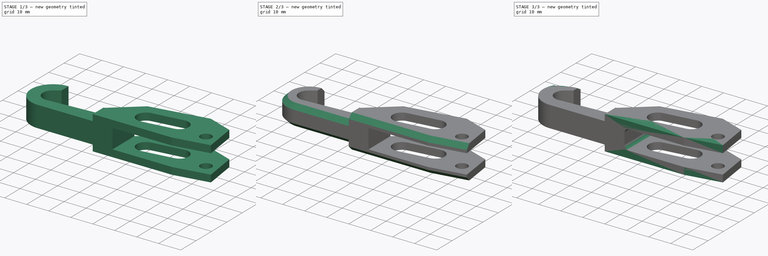
[diagram: build sequence overview — one tinted view per stage of 3, left to right]
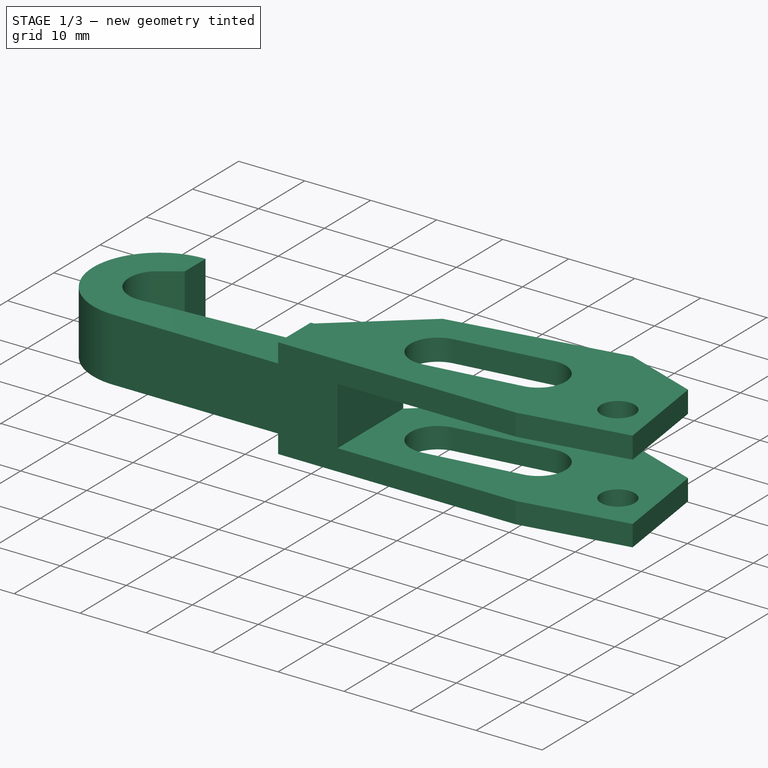
[diagram: stage 1 of 3 — iso view after this stage's code; geometry added in this stage tinted green]
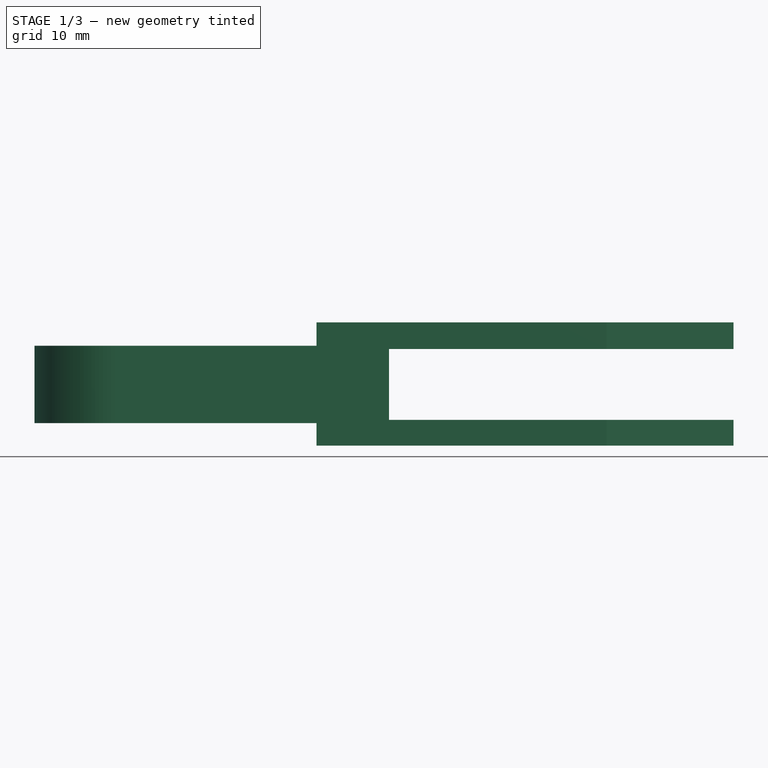
[diagram: stage 1 of 3 — front view after this stage's code; geometry added in this stage tinted green]
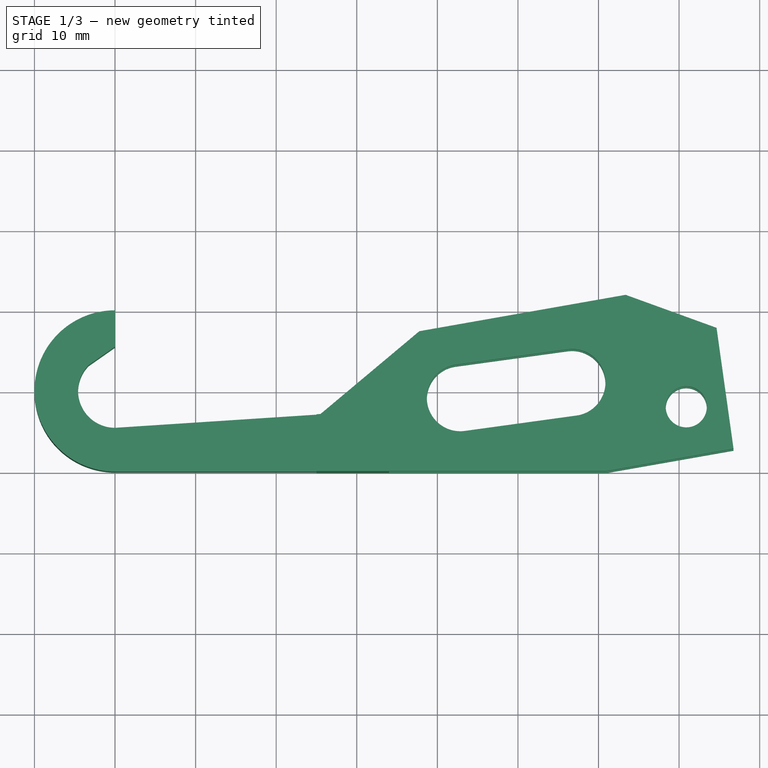
[diagram: stage 1 of 3 — top view after this stage's code; geometry added in this stage tinted green]
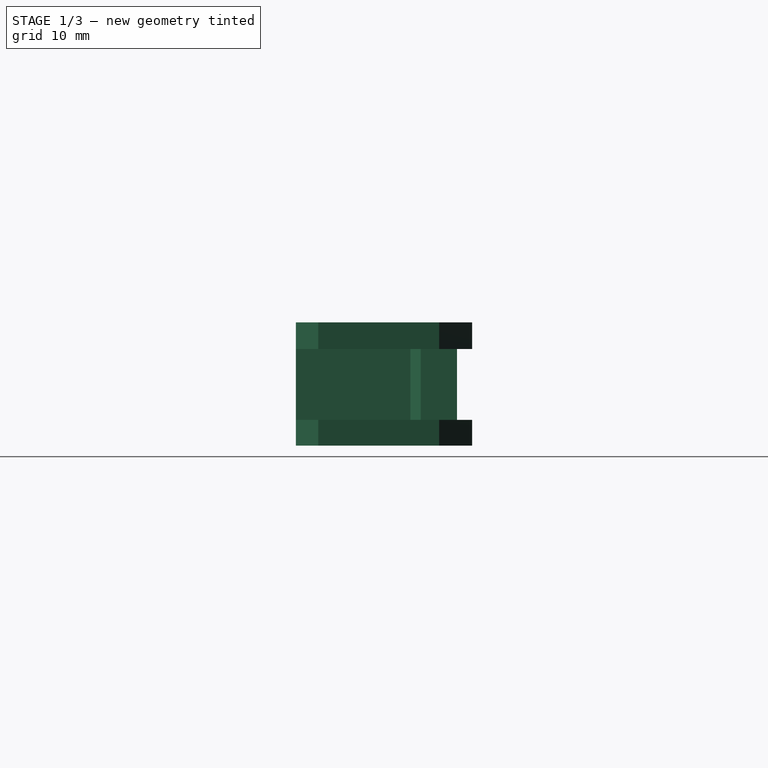
[diagram: stage 1 of 3 — right view after this stage's code; geometry added in this stage tinted green]
FCSTD DOCUMENT  (FreeCAD 0.21R33668 +26 (Git))
Label: Door Latch
License: All rights reserved
LicenseURL: http://en.wikipedia.org/wiki/All_rights_reserved
objects: Sketcher::SketchObject×3, PartDesign::Pocket×2, PartDesign::Chamfer×2, PartDesign::Pad×1, PartDesign::Fillet×1, PartDesign::Body×1, TechDraw::DrawSVGTemplate×1, TechDraw::DrawViewImage×1, TechDraw::DrawPage×1
note: 16 computed .brp shape members not serialized (recipe doc carries the construction recipe); baked Part::Feature solids carry a one-line shape summary decoded from their .brp

FEATURE [Sketcher::SketchObject] Sketch001
  FullyConstrained = true
  MapMode = 5
  Support = -> [XY_Plane]
  sketch-geometry (16):
    g0: ArcOfCircle CenterX=0 CenterY=0 CenterZ=0 NormalX=0 NormalY=0 NormalZ=1 AngleXU=0 Radius=10 StartAngle=1.5708 EndAngle=4.71239
    g1: LineSegment StartX=6e-16 StartY=10 StartZ=0 EndX=0 EndY=5.5 EndZ=0
    g2: LineSegment StartX=0 StartY=5.5 StartZ=0 EndX=-3.27661 EndY=3.20569 EndZ=0
    g3: ArcOfCircle CenterX=0 CenterY=0 CenterZ=0 NormalX=0 NormalY=0 NormalZ=1 AngleXU=0 Radius=4.58395 StartAngle=2.36713 EndAngle=4.71239
    g4: LineSegment StartX=-1.8e-15 StartY=-10 StartZ=0 EndX=61 EndY=-10 EndZ=0
    g5: LineSegment StartX=61 StartY=-10 StartZ=0 EndX=76.7569 EndY=-7.22163 EndZ=0
    g6: LineSegment StartX=76.7569 StartY=-7.22163 StartZ=0 EndX=74.6488 EndY=7.77837 EndZ=0
    g7: LineSegment StartX=74.6488 StartY=7.77837 StartZ=0 EndX=63.3687 EndY=11.8721 EndZ=0
    g8: LineSegment StartX=63.3687 StartY=11.8721 StartZ=0 EndX=37.7637 EndY=7.35726 EndZ=0
    g9: LineSegment StartX=37.7637 StartY=7.35726 StartZ=0 EndX=25.5 EndY=-2.91903 EndZ=0
    g10: LineSegment StartX=25.5 StartY=-2.91903 StartZ=0 EndX=0 EndY=-4.58395 EndZ=0
    g11: Circle CenterX=70.8924 CenterY=-2.02671 CenterZ=0 NormalX=0 NormalY=0 NormalZ=1 AngleXU=0 Radius=2.55
    g12: ArcOfCircle CenterX=42.8428 CenterY=-0.91 CenterZ=0 NormalX=0 NormalY=0 NormalZ=1 AngleXU=0 Radius=4.15 StartAngle=1.70765 EndAngle=4.84924
    g13: ArcOfCircle CenterX=56.7119 CenterY=1 CenterZ=0 NormalX=0 NormalY=0 NormalZ=1 AngleXU=0 Radius=4.15 StartAngle=4.84924 EndAngle=7.99084
    g14: LineSegment StartX=43.4089 StartY=-5.0212 StartZ=0 EndX=57.278 EndY=-3.1112 EndZ=0
    g15: LineSegment StartX=56.1457 StartY=5.1112 StartZ=0 EndX=42.2766 EndY=3.2012 EndZ=0
  constraints (46):
    c: Coincident(g0,g-1)
    c: PointOnObject(g0,g-2)
    c: PointOnObject(g0,g-2)
    c: Radius(g0) = 10
    c: Coincident(g1,g0)
    c: PointOnObject(g1,g-2)
    c: DistanceY(g1,g0) = 4.5
    c: Coincident(g2,g1)
    c: Distance(g1,g2) = 4
    c: Angle(g1,g2) = 2.18166
    c: Coincident(g3,g0)
    c: Coincident(g3,g2)
    c: PointOnObject(g3,g-2)
    c: Coincident(g4,g0)
    c: Horizontal(g4)
    c: DistanceX(g0,g4) = 61
    c: Coincident(g5,g4)
    c: Distance(g4,g5) = 16
    c: Angle(g5,g4) = 2.96706
    c: Coincident(g6,g5)
    c: Angle(g6,g5) = 1.6057
    c: DistanceY(g5,g6) = 15
    c: Coincident(g7,g6)
    c: Coincident(g8,g7)
    c: Coincident(g9,g8)
    c: Coincident(g10,g9)
    c: Coincident(g10,g3)
    c: Parallel(g5,g8)
    c: Distance(g7,g6) = 12
    c: Distance(g7,g8) = 26
    c: Distance(g9,g8) = 16
    c: Distance(g4,g7) = 22
    c: Tangent(g12,g14) = -1.5708
    c: Tangent(g14,g13) = -1.5708
    c: Tangent(g13,g15) = -1.5708
    c: Tangent(g15,g12) = -1.5708
    c: Equal(g12,g13)
    c: Distance(g13,g13) = 8.3
    c: Distance(g12,g13) = 14
    c: Distance(g3,g12) = 43
    c: DistanceY(g13,g0) = -1
    c: Diameter(g11) = 5.1
    c: Distance(g6,g11) = 10.5
    c: DistanceX(g3,g9) = 25.5
    c: DistanceY(g12,g0) = 0.91
    c: Distance(g13,g11) = 14.5
FEATURE [PartDesign::Pad] Pad
  Direction = (0,0,1)
  Length = 15.3
  Length2 = 10
  Profile = -> Sketch001
  ReferenceAxis = -> Sketch001 [N_Axis]
  Type = 0
FEATURE [Sketcher::SketchObject] Sketch002
  FullyConstrained = true
  MapMode = 5
  Placement = pos=(0,0,0) rot=(1,0,0;1.5708rad)
  Support = -> [XZ_Plane]
  sketch-geometry (12):
    g0: LineSegment StartX=84 StartY=12 StartZ=0 EndX=34 EndY=12 EndZ=0
    g1: LineSegment StartX=34 StartY=12 StartZ=0 EndX=34 EndY=3.2 EndZ=0
    g2: LineSegment StartX=34 StartY=3.2 StartZ=0 EndX=84 EndY=3.2 EndZ=0
    g3: LineSegment StartX=84 StartY=3.2 StartZ=0 EndX=84 EndY=12 EndZ=0
    g4: LineSegment StartX=-15 StartY=16.4 StartZ=0 EndX=25 EndY=16.4 EndZ=0
    g5: LineSegment StartX=25 StartY=16.4 StartZ=0 EndX=25 EndY=12.4 EndZ=0
    g6: LineSegment StartX=25 StartY=12.4 StartZ=0 EndX=-15 EndY=12.4 EndZ=0
    g7: LineSegment StartX=-15 StartY=12.4 StartZ=0 EndX=-15 EndY=16.4 EndZ=0
    g8: LineSegment StartX=-15 StartY=2.8 StartZ=0 EndX=25 EndY=2.8 EndZ=0
    g9: LineSegment StartX=25 StartY=2.8 StartZ=0 EndX=25 EndY=-1.2 EndZ=0
    g10: LineSegment StartX=25 StartY=-1.2 StartZ=0 EndX=-15 EndY=-1.2 EndZ=0
    g11: LineSegment StartX=-15 StartY=-1.2 StartZ=0 EndX=-15 EndY=2.8 EndZ=0
  constraints (36):
    c: Coincident(g0,g1)
    c: Coincident(g1,g2)
    c: Coincident(g2,g3)
    c: Coincident(g3,g0)
    c: Horizontal(g0)
    c: Horizontal(g2)
    c: Vertical(g1)
    c: Vertical(g3)
    c: DistanceX(g0,g0) = 50
    c: DistanceY(g-1,g1) = 3.2
    c: DistanceX(g-1,g1) = 34
    c: Coincident(g4,g5)
    c: Coincident(g5,g6)
    c: Coincident(g6,g7)
    c: Coincident(g7,g4)
    c: Horizontal(g4)
    c: Horizontal(g6)
    c: Vertical(g5)
    c: Vertical(g7)
    c: Coincident(g8,g9)
    c: Coincident(g9,g10)
    c: Coincident(g10,g11)
    c: Coincident(g11,g8)
    c: Horizontal(g8)
    c: Horizontal(g10)
    c: Vertical(g9)
    c: Vertical(g11)
    c: Vertical(g6,g8)
    c: Vertical(g5,g8)
    c: DistanceX(g4,g4) = 40
    c: DistanceY(g8,g6) = 9.6
    c: DistanceY(g6,g4) = 4
    c: DistanceY(g-1,g8) = 2.8
    c: Equal(g7,g11)
    c: DistanceX(g-1,g9) = 25
    c: DistanceY(g2,g0) = 8.8
FEATURE [PartDesign::Pocket] Pocket
  BaseFeature = -> Pad
  Direction = (0,1,2e-16)
  Length = 14
  Length2 = 14
  Profile = -> Sketch002
  ReferenceAxis = -> Sketch002 [N_Axis]
  Type = 4
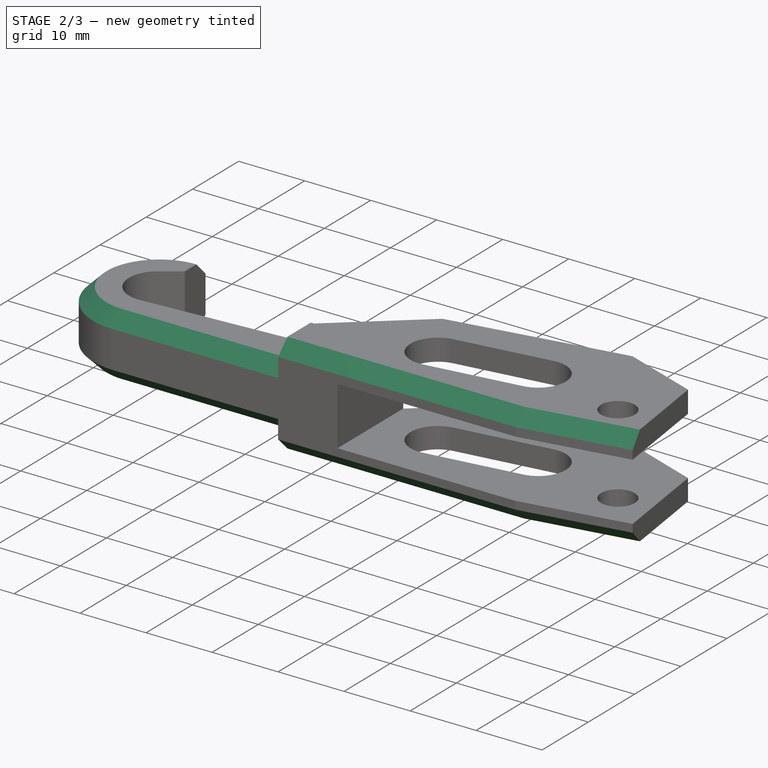
[diagram: stage 2 of 3 — iso view after this stage's code; geometry added in this stage tinted green]
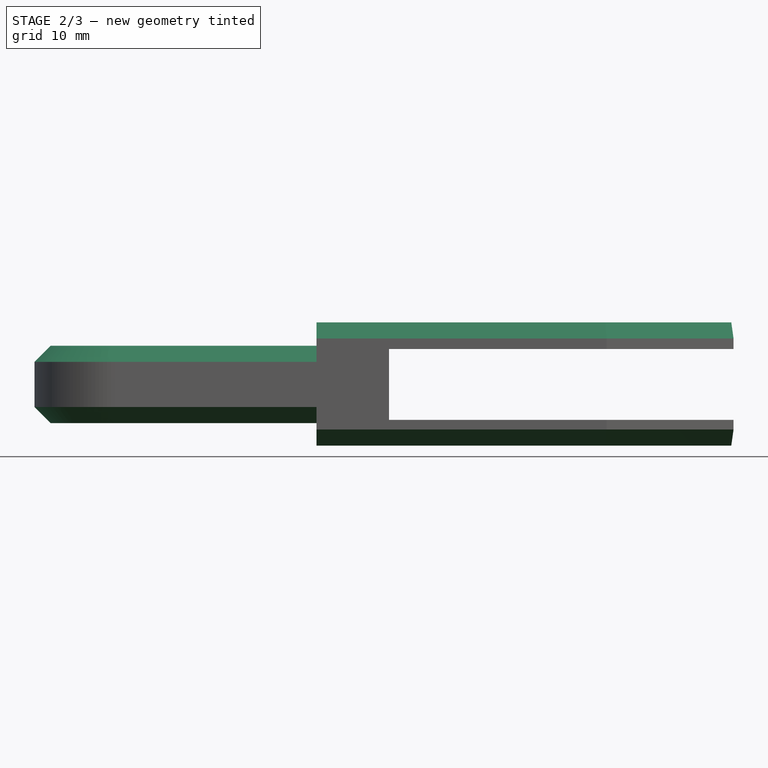
[diagram: stage 2 of 3 — front view after this stage's code; geometry added in this stage tinted green]
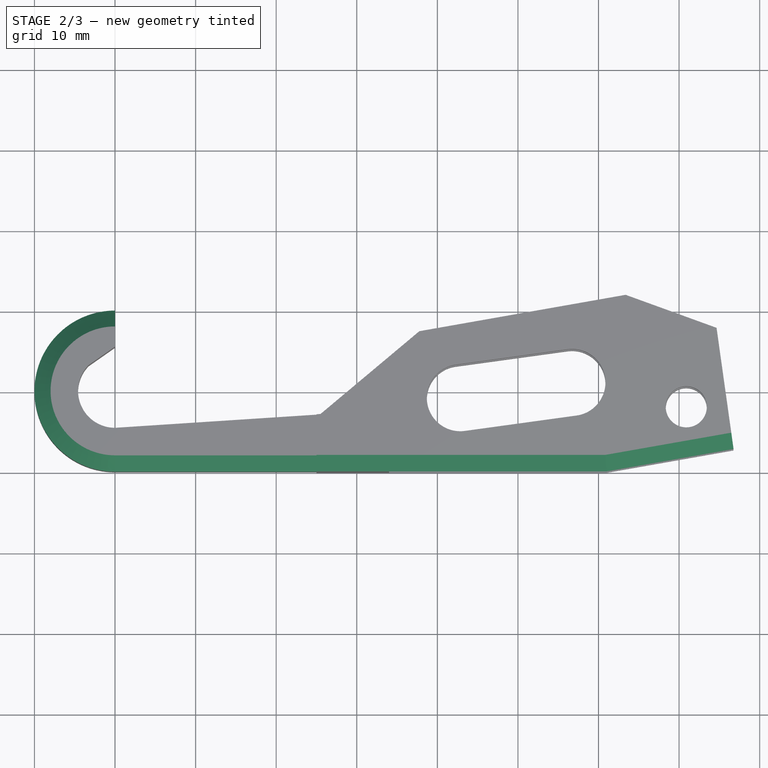
[diagram: stage 2 of 3 — top view after this stage's code; geometry added in this stage tinted green]
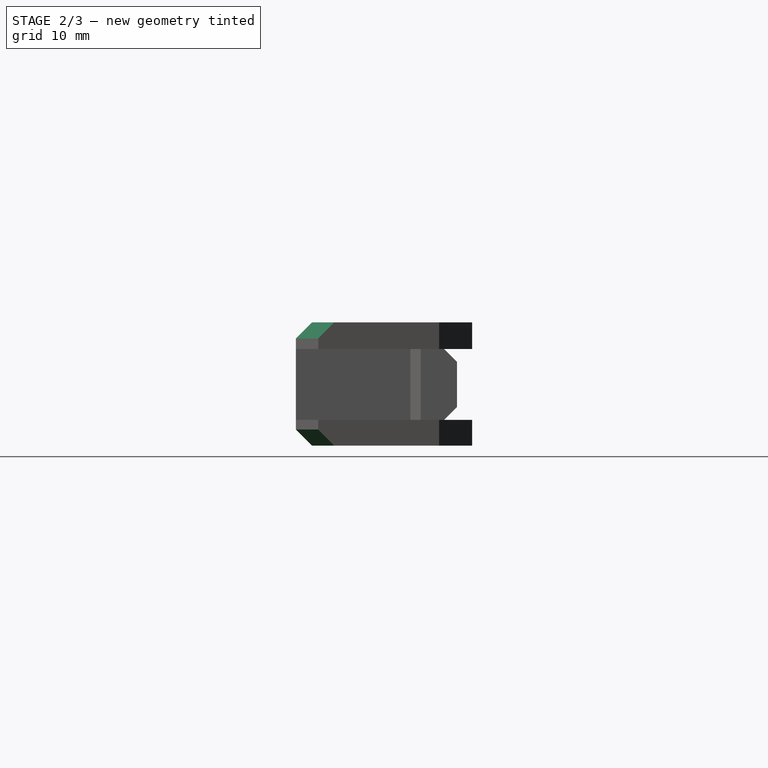
[diagram: stage 2 of 3 — right view after this stage's code; geometry added in this stage tinted green]
FEATURE [PartDesign::Chamfer] Chamfer
  Angle = 45
  Base = -> Pocket [Edge12,Edge39,Edge70,Edge18]
  BaseFeature = -> Pocket
  ChamferType = 0
  FlipDirection = false
  Size = 2
  Size2 = 1
  SupportTransform = false
  UseAllEdges = false
FEATURE [PartDesign::Chamfer] Chamfer001
  Angle = 45
  Base = -> Chamfer [Edge27,Edge23]
  BaseFeature = -> Chamfer
  ChamferType = 0
  FlipDirection = false
  Size = 2
  Size2 = 1
  SupportTransform = false
  UseAllEdges = false
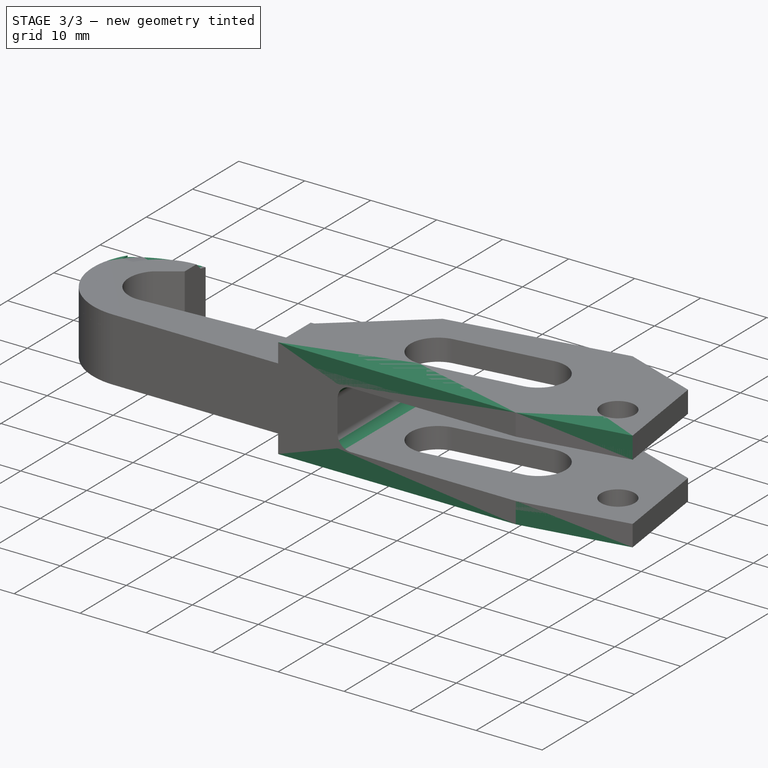
[diagram: stage 3 of 3 — iso view after this stage's code; geometry added in this stage tinted green]
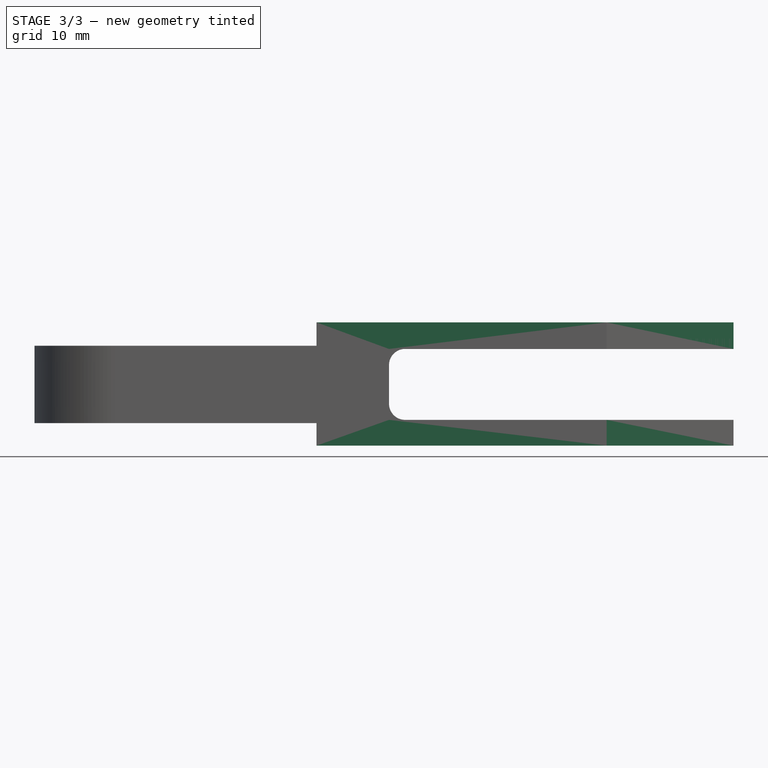
[diagram: stage 3 of 3 — front view after this stage's code; geometry added in this stage tinted green]
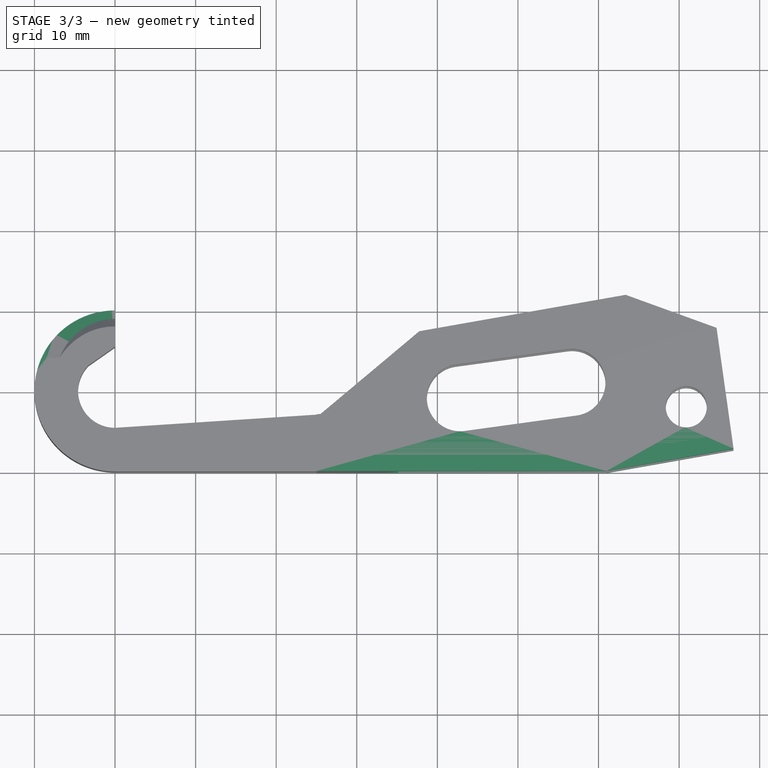
[diagram: stage 3 of 3 — top view after this stage's code; geometry added in this stage tinted green]
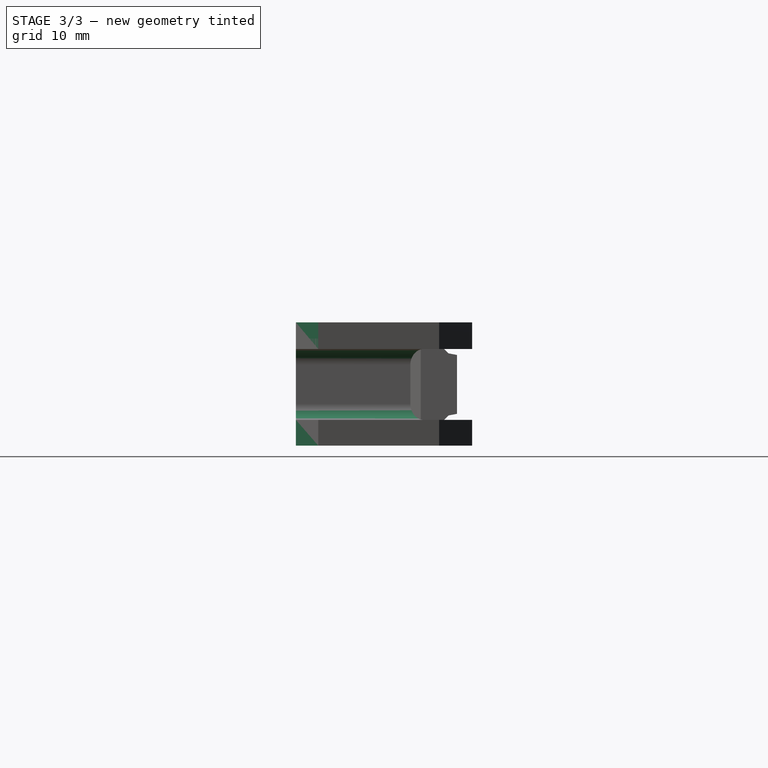
[diagram: stage 3 of 3 — right view after this stage's code; geometry added in this stage tinted green]
FEATURE [Sketcher::SketchObject] Sketch003
  FullyConstrained = true
  MapMode = 5
  Placement = pos=(0,0,0) rot=(0.57735,0.57735,0.57735;2.0944rad)
  Support = -> [YZ_Plane]
  sketch-geometry (6):
    g0: LineSegment StartX=10 StartY=11.25 StartZ=0 EndX=4.11124 EndY=12.4 EndZ=0
    g1: LineSegment StartX=4.11124 StartY=12.4 StartZ=0 EndX=10 EndY=12.4 EndZ=0
    g2: LineSegment StartX=10 StartY=11.25 StartZ=0 EndX=10 EndY=12.4 EndZ=0
    g3: LineSegment StartX=10 StartY=3.95 StartZ=0 EndX=10 EndY=2.8 EndZ=0
    g4: LineSegment StartX=10 StartY=2.8 StartZ=0 EndX=4.11124 EndY=2.8 EndZ=0
    g5: LineSegment StartX=4.11124 StartY=2.8 StartZ=0 EndX=10 EndY=3.95 EndZ=0
  constraints (18):
    c: Coincident(g1,g0)
    c: Horizontal(g1)
    c: Coincident(g2,g0)
    c: Coincident(g2,g1)
    c: Vertical(g2)
    c: Vertical(g3)
    c: Coincident(g4,g3)
    c: Horizontal(g4)
    c: Coincident(g5,g4)
    c: Coincident(g5,g3)
    c: DistanceY(g3,g0) = 7.3
    c: Vertical(g3,g0)
    c: Vertical(g0,g4)
    c: Distance(g3,g4) = 6
    c: DistanceY(g-1,g3) = 3.95
    c: DistanceY(g4,g0) = 9.6
    c: Equal(g3,g2)
    c: DistanceX(g-1,g3) = 10
FEATURE [PartDesign::Pocket] Pocket001
  BaseFeature = -> Pocket
  Direction = (-1,2e-16,-3e-16)
  Length = 17
  Length2 = 5
  Midplane = true
  Profile = -> Sketch003
  ReferenceAxis = -> Sketch003 [N_Axis]
  Type = 0
FEATURE [PartDesign::Fillet] Fillet
  Base = -> Chamfer001 [Edge52,Edge46]
  BaseFeature = -> Chamfer001
  Radius = 2
  SupportTransform = false
  UseAllEdges = false
FEATURE [PartDesign::Body] Body
  Group = -> [Sketch001,Pad,Sketch002,Pocket,Sketch003,Pocket001,Chamfer,Chamfer001,Fillet]
  Origin = -> Origin
  Tip = -> Fillet
FEATURE [TechDraw::DrawSVGTemplate] Template
  EditableTexts = Designed_by_Name=Designed by Name; Drawing_number=Drawing number; FC-Date=Date; FC-SC=Scale; FC-SH=Sheet; FC-Title=Title; Subtitle=Subtitle; Weight=Weight
  Height = 210
  Orientation = 1
  Template = C:/Program Files/FreeCAD 0.21/data/Mod/TechDraw/Templates/A4_LandscapeTD.svg
  Width = 297
FEATURE [TechDraw::DrawViewImage] ActiveView  label="3D View"
  Height = 100
  ImageFile = <userpath>/AppData/Local/Temp/FreeCAD/Cache/FreeCAD_Doc_55f1a0b0-2c48-48f5-9409-b15693ae456d_beafba_8344/PagA867.tmp.png
  LockPosition = false
  Rotation = 0
  Scale = 2
  ScaleType = 2
  Width = 100
  X = 80.4855
  Y = 65.5211
FEATURE [TechDraw::DrawPage] Page
  KeepUpdated = true
  NextBalloonIndex = 1
  ProjectionType = 0
  Template = -> Template
  Views = -> [ActiveView]
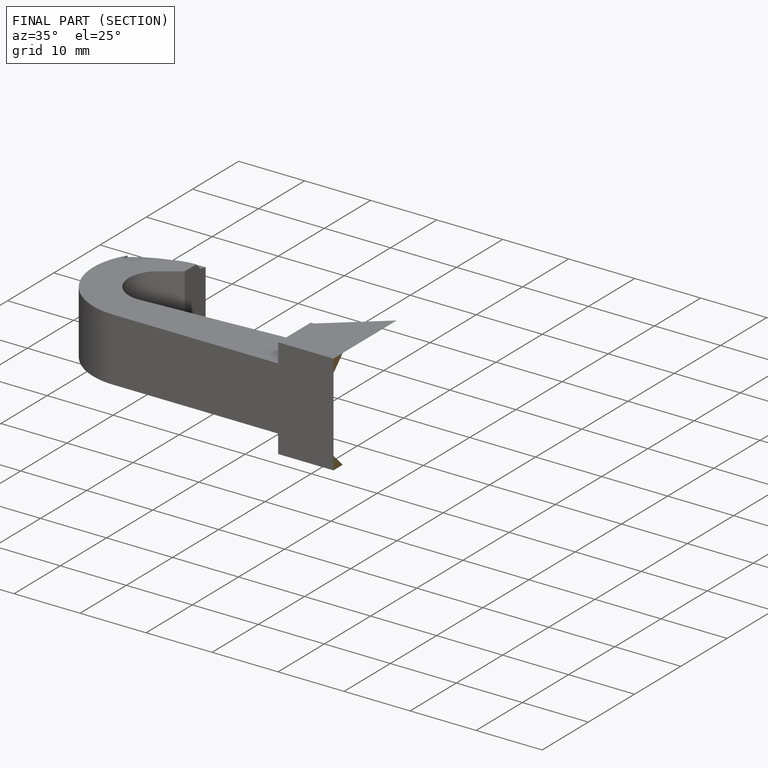
[diagram: finished part — half-section view (interior)]
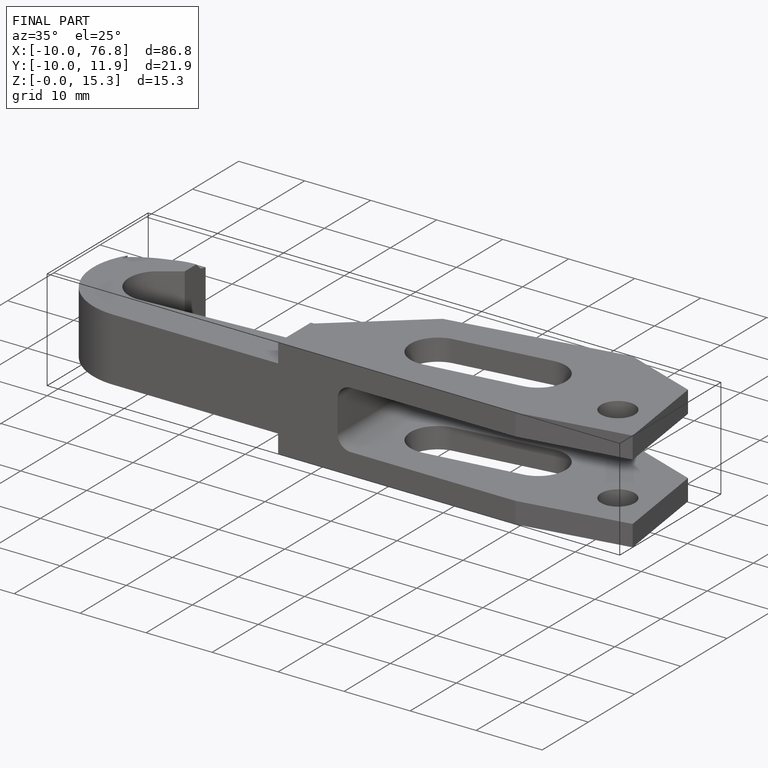
[diagram: finished part — iso view with bounding-box wireframe]
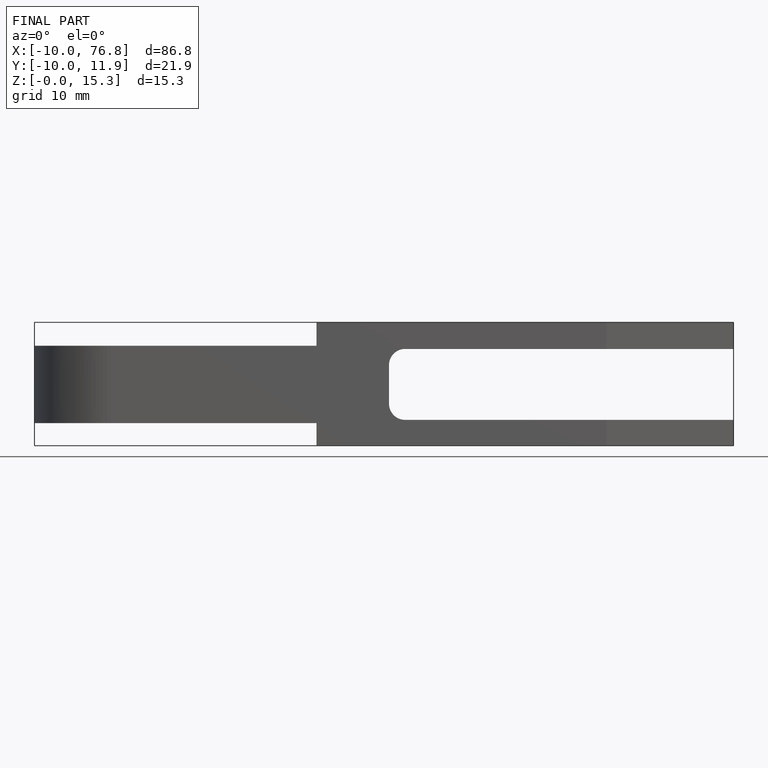
[diagram: finished part — front view with bounding-box wireframe]
